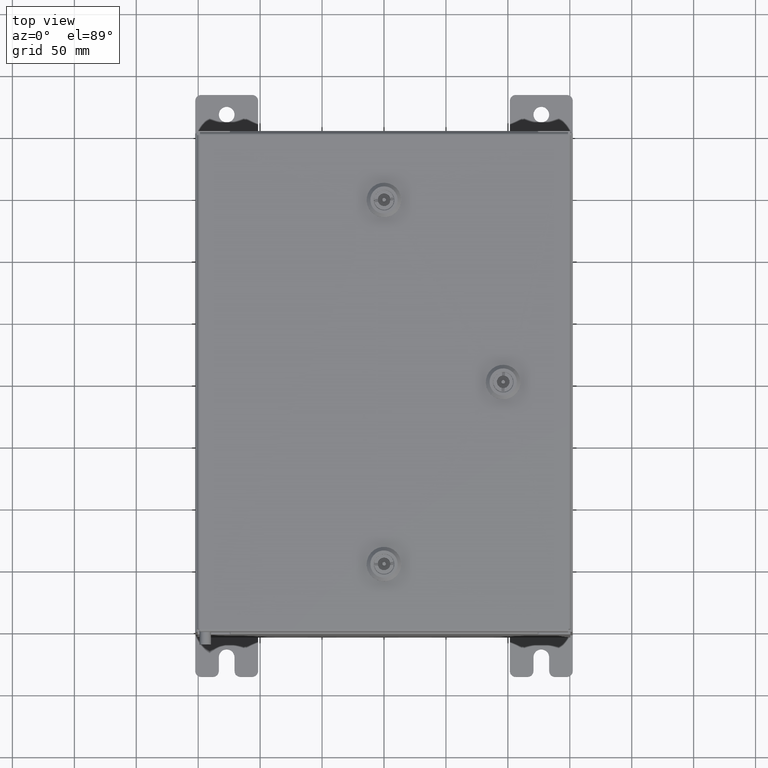
[diagram: clean part render]
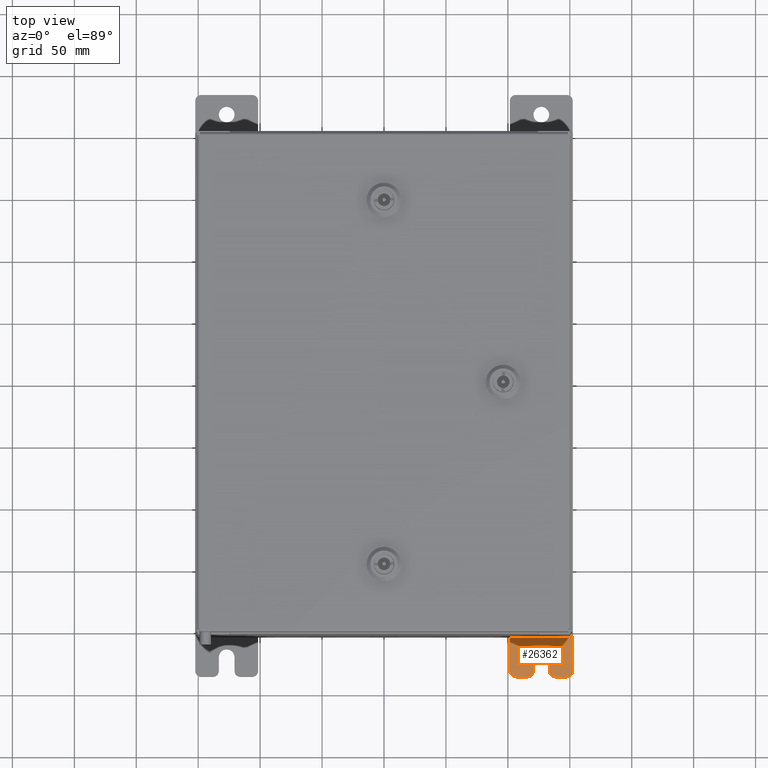
[diagram: same view with one face highlighted and labeled with its STEP entity id]
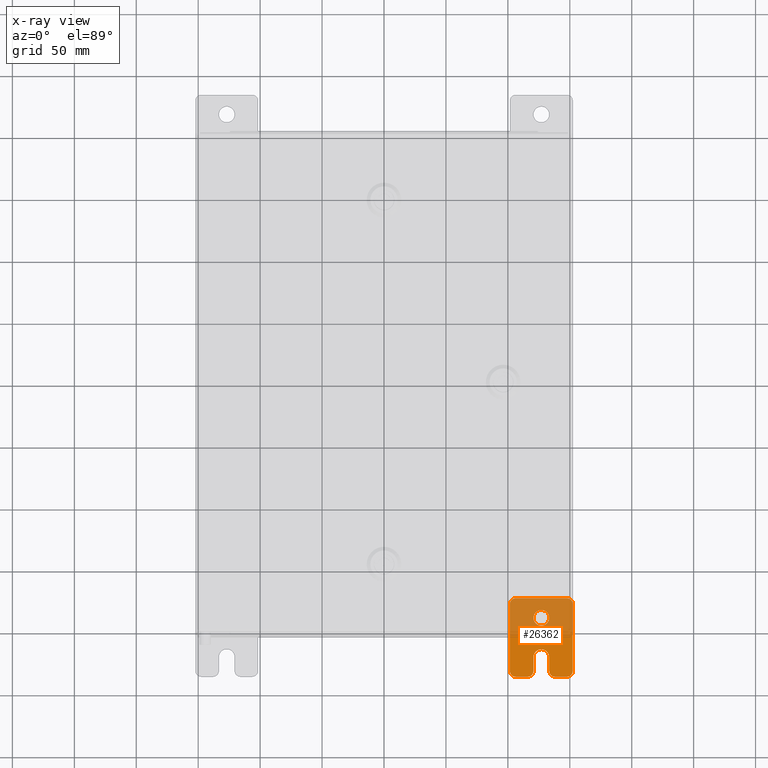
[diagram: x-ray of the same camera — body ghosted, the highlighted face saturated]
A machine part, top view. The second image highlights one B-rep face of the part: STEP entity #26362.
The next image is the same camera in x-ray: the body ghosted, the highlighted face saturated — about 51% of this face is hidden behind the body in this view.
In plain terms, the highlighted planar face has unit normal (0, 0, 1).
Its self-contained STEP definition (entity closure, byte-faithful):
#511 = AXIS2_PLACEMENT_3D ( 'NONE', #30672, #2257, #35485 ) ;
#860 = ORIENTED_EDGE ( 'NONE', *, *, #52355, .T. ) ;
#1160 = DIRECTION ( 'NONE',  ( 1.000000000000000000, 0.0000000000000000000, -0.0000000000000000000 ) ) ;
#2048 = ORIENTED_EDGE ( 'NONE', *, *, #58112, .F. ) ;
#2119 = EDGE_CURVE ( 'NONE', #14117, #2816, #13495, .T. ) ;
#2257 = DIRECTION ( 'NONE',  ( 1.000000000000000000, 0.0000000000000000000, -0.0000000000000000000 ) ) ;
#2816 = VERTEX_POINT ( 'NONE', #4144 ) ;
#3181 = CARTESIAN_POINT ( 'NONE',  ( 0.0000000000000000000, 1.059999999999996300, 0.8099999999999938400 ) ) ;
#3251 = PLANE ( 'NONE',  #9902 ) ;
#3258 = FACE_OUTER_BOUND ( 'NONE', #32900, .T. ) ;
#3346 = DIRECTION ( 'NONE',  ( 1.000000000000000000, 0.0000000000000000000, -0.0000000000000000000 ) ) ;
#3387 = CIRCLE ( 'NONE', #511, 0.1900000000000011100 ) ;
#3655 = DIRECTION ( 'NONE',  ( -5.163192708025533800E-017, 0.0000000000000000000, -1.000000000000000000 ) ) ;
#4144 = CARTESIAN_POINT ( 'NONE',  ( 0.0000000000000000000, -1.250000000000004700, -0.4400000000000002200 ) ) ;
#4793 = CARTESIAN_POINT ( 'NONE',  ( 0.0000000000000000000, -1.250000000000003100, 0.4400000000000020000 ) ) ;
#5129 = DIRECTION ( 'NONE',  ( 0.0000000000000000000, -1.639108796198553600E-015, -1.000000000000000000 ) ) ;
#5864 = CARTESIAN_POINT ( 'NONE',  ( 0.0000000000000000000, -1.250000000000005300, -0.8100000000000047200 ) ) ;
#6547 = CARTESIAN_POINT ( 'NONE',  ( 0.0000000000000000000, -0.6249999999999992200, 0.2500000000000005000 ) ) ;
#7304 = CARTESIAN_POINT ( 'NONE',  ( 4.168508244714285900E-016, 0.6249999999999992200, 0.2499999999999999200 ) ) ;
#7503 = CARTESIAN_POINT ( 'NONE',  ( 0.0000000000000000000, 1.249999999999997600, 0.9999999999999951200 ) ) ;
#7720 = EDGE_CURVE ( 'NONE', #17975, #55254, #22120, .T. ) ;
#7938 = DIRECTION ( 'NONE',  ( 0.0000000000000000000, 0.0000000000000000000, -1.000000000000000000 ) ) ;
#8008 = CARTESIAN_POINT ( 'NONE',  ( 0.0000000000000000000, 0.0000000000000000000, 0.0000000000000000000 ) ) ;
#8790 = CARTESIAN_POINT ( 'NONE',  ( 1.928684683526964400E-016, -1.060000000000003400, -0.2499999999999994400 ) ) ;
#8848 = DIRECTION ( 'NONE',  ( 0.0000000000000000000, 0.0000000000000000000, -1.000000000000000000 ) ) ;
#9043 = CARTESIAN_POINT ( 'NONE',  ( 4.780733988912460100E-016, -0.6249999999999993300, 5.858939755051854500E-017 ) ) ;
#9581 = VECTOR ( 'NONE', #30430, 39.37007874015748100 ) ;
#9623 = CARTESIAN_POINT ( 'NONE',  ( 4.039428427013647300E-016, 0.6249999999999992200, -9.783840404509077400E-018 ) ) ;
#9673 = DIRECTION ( 'NONE',  ( 1.000000000000000000, 0.0000000000000000000, -0.0000000000000000000 ) ) ;
#9888 = ORIENTED_EDGE ( 'NONE', *, *, #29396, .T. ) ;
#9902 = AXIS2_PLACEMENT_3D ( 'NONE', #8008, #17572, #50907 ) ;
#9911 = EDGE_CURVE ( 'NONE', #55422, #30555, #19397, .T. ) ;
#10616 = ORIENTED_EDGE ( 'NONE', *, *, #7720, .T. ) ;
#10719 = AXIS2_PLACEMENT_3D ( 'NONE', #9043, #42349, #13815 ) ;
#11346 = ORIENTED_EDGE ( 'NONE', *, *, #55066, .T. ) ;
#12276 = AXIS2_PLACEMENT_3D ( 'NONE', #44532, #16002, #49316 ) ;
#12803 = DIRECTION ( 'NONE',  ( 0.0000000000000000000, -1.639108796198553600E-015, -1.000000000000000000 ) ) ;
#13285 = EDGE_CURVE ( 'NONE', #39502, #55387, #25900, .T. ) ;
#13495 = CIRCLE ( 'NONE', #45400, 0.1900000000000011100 ) ;
#13815 = DIRECTION ( 'NONE',  ( -6.523827964459551700E-016, -1.000000000000000000, 0.0000000000000000000 ) ) ;
#14117 = VERTEX_POINT ( 'NONE', #8790 ) ;
#14412 = DIRECTION ( 'NONE',  ( -5.163192708025533800E-017, 0.0000000000000000000, -1.000000000000000000 ) ) ;
#15141 = ORIENTED_EDGE ( 'NONE', *, *, #56865, .T. ) ;
#16002 = DIRECTION ( 'NONE',  ( 1.000000000000000000, 0.0000000000000000000, -0.0000000000000000000 ) ) ;
#17572 = DIRECTION ( 'NONE',  ( 1.000000000000000000, 0.0000000000000000000, -0.0000000000000000000 ) ) ;
#17975 = VERTEX_POINT ( 'NONE', #42942 ) ;
#19011 = CARTESIAN_POINT ( 'NONE',  ( 3.910348609313009100E-016, 0.6249999999999992200, -0.2499999999999999200 ) ) ;
#19362 = CARTESIAN_POINT ( 'NONE',  ( 0.0000000000000000000, -1.250000000000002400, 0.8099999999999980500 ) ) ;
#19397 = CIRCLE ( 'NONE', #42478, 0.2499999999999999200 ) ;
#20057 = CARTESIAN_POINT ( 'NONE',  ( 4.780733988912460100E-016, -0.6249999999999993300, -0.2499999999999998600 ) ) ;
#20266 = VECTOR ( 'NONE', #50396, 39.37007874015748100 ) ;
#20540 = CARTESIAN_POINT ( 'NONE',  ( 0.0000000000000000000, 1.059999999999993400, -1.000000000000010000 ) ) ;
#22120 = LINE ( 'NONE', #28591, #34771 ) ;
#22768 = CARTESIAN_POINT ( 'NONE',  ( 1.928684683526972300E-016, -1.060000000000002100, 0.2500000000000005000 ) ) ;
#23440 = ORIENTED_EDGE ( 'NONE', *, *, #9911, .F. ) ;
#23608 = AXIS2_PLACEMENT_3D ( 'NONE', #60632, #32069, #3655 ) ;
#24733 = AXIS2_PLACEMENT_3D ( 'NONE', #3181, #36434, #7938 ) ;
#24815 = VECTOR ( 'NONE', #12803, 39.37007874015748100 ) ;
#25348 = VERTEX_POINT ( 'NONE', #19362 ) ;
#25590 = EDGE_CURVE ( 'NONE', #31664, #38120, #43507, .T. ) ;
#25687 = CARTESIAN_POINT ( 'NONE',  ( 0.0000000000000000000, -1.250000000000005600, -1.000000000000006200 ) ) ;
#25900 = CIRCLE ( 'NONE', #45736, 0.1900000000000011400 ) ;
#26362 = ADVANCED_FACE ( 'NONE', ( #50915, #3258 ), #3251, .T. ) ;
#26738 = VERTEX_POINT ( 'NONE', #20540 ) ;
#26947 = EDGE_CURVE ( 'NONE', #2816, #31664, #40442, .T. ) ;
#27092 = EDGE_CURVE ( 'NONE', #57083, #55616, #34458, .T. ) ;
#27614 = LINE ( 'NONE', #34561, #41820 ) ;
#27893 = DIRECTION ( 'NONE',  ( 6.556435184794182400E-016, 1.000000000000000000, 0.0000000000000000000 ) ) ;
#27965 = VERTEX_POINT ( 'NONE', #38375 ) ;
#28202 = EDGE_CURVE ( 'NONE', #57648, #27965, #58268, .T. ) ;
#28591 = CARTESIAN_POINT ( 'NONE',  ( 0.0000000000000000000, 1.249999999999994200, -1.000000000000010400 ) ) ;
#28658 = ORIENTED_EDGE ( 'NONE', *, *, #26947, .T. ) ;
#29396 = EDGE_CURVE ( 'NONE', #27965, #25348, #58497, .T. ) ;
#29594 = CARTESIAN_POINT ( 'NONE',  ( 0.0000000000000000000, -1.060000000000001600, 0.8099999999999978300 ) ) ;
#30430 = DIRECTION ( 'NONE',  ( 0.0000000000000000000, 1.000000000000000000, -1.639108796198558100E-015 ) ) ;
#30555 = VERTEX_POINT ( 'NONE', #7304 ) ;
#30672 = CARTESIAN_POINT ( 'NONE',  ( 0.0000000000000000000, 1.059999999999993600, -0.8100000000000089400 ) ) ;
#31664 = VERTEX_POINT ( 'NONE', #5864 ) ;
#31762 = CARTESIAN_POINT ( 'NONE',  ( 0.0000000000000000000, -1.060000000000002100, 0.4400000000000016700 ) ) ;
#32069 = DIRECTION ( 'NONE',  ( 1.000000000000000000, -0.0000000000000000000, -5.163192708025532000E-017 ) ) ;
#32115 = CIRCLE ( 'NONE', #23608, 0.2499999999999999200 ) ;
#32900 = EDGE_LOOP ( 'NONE', ( #61146, #9888, #15141, #33955, #61192, #41466, #34494, #48666, #28658, #33018, #46442, #11346, #10616, #860 ) ) ;
#33007 = VECTOR ( 'NONE', #5129, 39.37007874015748100 ) ;
#33018 = ORIENTED_EDGE ( 'NONE', *, *, #25590, .T. ) ;
#33610 = DIRECTION ( 'NONE',  ( 0.0000000000000000000, 1.639108796198553600E-015, 1.000000000000000000 ) ) ;
#33955 = ORIENTED_EDGE ( 'NONE', *, *, #13285, .T. ) ;
#34335 = EDGE_CURVE ( 'NONE', #55616, #14117, #27614, .T. ) ;
#34413 = DIRECTION ( 'NONE',  ( 0.0000000000000000000, 0.0000000000000000000, -1.000000000000000000 ) ) ;
#34458 = CIRCLE ( 'NONE', #10719, 0.2499999999999999200 ) ;
#34494 = ORIENTED_EDGE ( 'NONE', *, *, #34335, .T. ) ;
#34561 = CARTESIAN_POINT ( 'NONE',  ( 4.780733988912460100E-016, -0.6249999999999993300, -0.2499999999999993900 ) ) ;
#34771 = VECTOR ( 'NONE', #33610, 39.37007874015748100 ) ;
#35485 = DIRECTION ( 'NONE',  ( 0.0000000000000000000, 0.0000000000000000000, -1.000000000000000000 ) ) ;
#36434 = DIRECTION ( 'NONE',  ( 1.000000000000000000, 0.0000000000000000000, -0.0000000000000000000 ) ) ;
#36518 = CARTESIAN_POINT ( 'NONE',  ( 0.0000000000000000000, -1.250000000000002200, 0.9999999999999992200 ) ) ;
#36597 = DIRECTION ( 'NONE',  ( 0.0000000000000000000, 0.0000000000000000000, -1.000000000000000000 ) ) ;
#38120 = VERTEX_POINT ( 'NONE', #40475 ) ;
#38183 = CARTESIAN_POINT ( 'NONE',  ( 0.0000000000000000000, -1.250000000000002200, 0.9999999999999992200 ) ) ;
#38375 = CARTESIAN_POINT ( 'NONE',  ( 0.0000000000000000000, -1.060000000000001200, 0.9999999999999988900 ) ) ;
#38738 = AXIS2_PLACEMENT_3D ( 'NONE', #29594, #1160, #34413 ) ;
#39502 = VERTEX_POINT ( 'NONE', #4793 ) ;
#39680 = EDGE_CURVE ( 'NONE', #38120, #26738, #60228, .T. ) ;
#40442 = LINE ( 'NONE', #36518, #24815 ) ;
#40475 = CARTESIAN_POINT ( 'NONE',  ( 0.0000000000000000000, -1.060000000000004500, -1.000000000000006400 ) ) ;
#41466 = ORIENTED_EDGE ( 'NONE', *, *, #27092, .T. ) ;
#41820 = VECTOR ( 'NONE', #59898, 39.37007874015748100 ) ;
#42249 = CIRCLE ( 'NONE', #24733, 0.1900000000000011100 ) ;
#42291 = EDGE_CURVE ( 'NONE', #55387, #57083, #57875, .T. ) ;
#42349 = DIRECTION ( 'NONE',  ( -1.000000000000000000, 6.523827964459549700E-016, 5.163192708025532000E-017 ) ) ;
#42478 = AXIS2_PLACEMENT_3D ( 'NONE', #9623, #42931, #14412 ) ;
#42931 = DIRECTION ( 'NONE',  ( 1.000000000000000000, -0.0000000000000000000, -5.163192708025532000E-017 ) ) ;
#42942 = CARTESIAN_POINT ( 'NONE',  ( 0.0000000000000000000, 1.249999999999994700, -0.8100000000000092700 ) ) ;
#42983 = CARTESIAN_POINT ( 'NONE',  ( 0.0000000000000000000, -1.060000000000003400, -0.4400000000000005000 ) ) ;
#43507 = CIRCLE ( 'NONE', #12276, 0.1900000000000011100 ) ;
#44532 = CARTESIAN_POINT ( 'NONE',  ( 0.0000000000000000000, -1.060000000000004100, -0.8100000000000050500 ) ) ;
#45400 = AXIS2_PLACEMENT_3D ( 'NONE', #42983, #9673, #8848 ) ;
#45736 = AXIS2_PLACEMENT_3D ( 'NONE', #31762, #3346, #36597 ) ;
#46442 = ORIENTED_EDGE ( 'NONE', *, *, #39680, .T. ) ;
#46652 = VECTOR ( 'NONE', #27893, 39.37007874015748100 ) ;
#48666 = ORIENTED_EDGE ( 'NONE', *, *, #2119, .T. ) ;
#49316 = DIRECTION ( 'NONE',  ( 0.0000000000000000000, 0.0000000000000000000, -1.000000000000000000 ) ) ;
#50396 = DIRECTION ( 'NONE',  ( 0.0000000000000000000, -1.000000000000000000, 1.639108796198558100E-015 ) ) ;
#50907 = DIRECTION ( 'NONE',  ( -0.0000000000000000000, 0.0000000000000000000, -1.000000000000000000 ) ) ;
#50915 = FACE_BOUND ( 'NONE', #57372, .T. ) ;
#52355 = EDGE_CURVE ( 'NONE', #55254, #57648, #42249, .T. ) ;
#55066 = EDGE_CURVE ( 'NONE', #26738, #17975, #3387, .T. ) ;
#55254 = VERTEX_POINT ( 'NONE', #60264 ) ;
#55387 = VERTEX_POINT ( 'NONE', #22768 ) ;
#55422 = VERTEX_POINT ( 'NONE', #19011 ) ;
#55616 = VERTEX_POINT ( 'NONE', #20057 ) ;
#56505 = CARTESIAN_POINT ( 'NONE',  ( 6.829619984160658000E-017, -1.250000000000003800, 0.2500000000000005000 ) ) ;
#56865 = EDGE_CURVE ( 'NONE', #25348, #39502, #61366, .T. ) ;
#57083 = VERTEX_POINT ( 'NONE', #6547 ) ;
#57372 = EDGE_LOOP ( 'NONE', ( #23440, #2048 ) ) ;
#57407 = CARTESIAN_POINT ( 'NONE',  ( 0.0000000000000000000, 1.059999999999996500, 0.9999999999999953400 ) ) ;
#57648 = VERTEX_POINT ( 'NONE', #57407 ) ;
#57875 = LINE ( 'NONE', #56505, #46652 ) ;
#58112 = EDGE_CURVE ( 'NONE', #30555, #55422, #32115, .T. ) ;
#58268 = LINE ( 'NONE', #7503, #20266 ) ;
#58497 = CIRCLE ( 'NONE', #38738, 0.1900000000000011100 ) ;
#59898 = DIRECTION ( 'NONE',  ( -6.556435184794182400E-016, -1.000000000000000000, -1.639108796198545600E-016 ) ) ;
#60228 = LINE ( 'NONE', #25687, #9581 ) ;
#60264 = CARTESIAN_POINT ( 'NONE',  ( 0.0000000000000000000, 1.249999999999997300, 0.8099999999999935000 ) ) ;
#60632 = CARTESIAN_POINT ( 'NONE',  ( 4.039428427013647300E-016, 0.6249999999999992200, -9.783840404509077400E-018 ) ) ;
#61146 = ORIENTED_EDGE ( 'NONE', *, *, #28202, .T. ) ;
#61192 = ORIENTED_EDGE ( 'NONE', *, *, #42291, .T. ) ;
#61366 = LINE ( 'NONE', #38183, #33007 ) ;